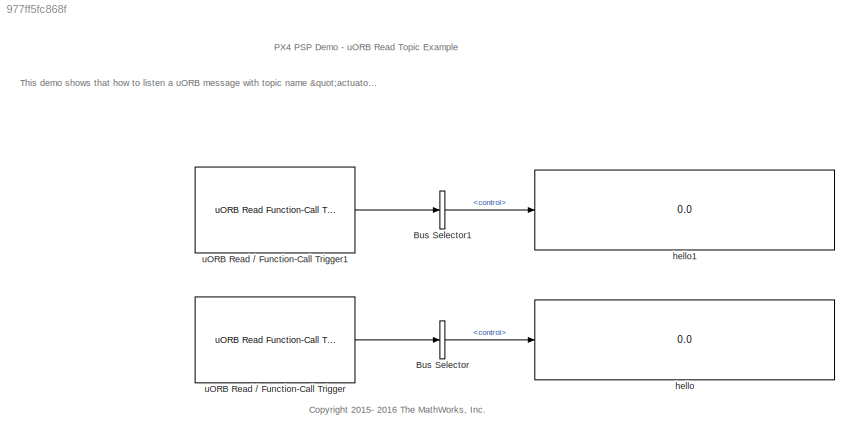
MODEL slx_977ff5fc868f
KIND model
CONFIG AbsTol = auto
CONFIG EnableMultiTasking = on
CONFIG FixedStep = 0.01
CONFIG MaxStep = auto
CONFIG MinStep = auto
CONFIG RelTol = 1e-3
CONFIG SampleTimeConstraint = Unconstrained
CONFIG Solver = FixedStepDiscrete
CONFIG SolverName = FixedStepDiscrete
CONFIG StartTime = 0.0
CONFIG StopTime = inf
BLOCK [BusSelector] Bus Selector
  OutputAsBus = off
  OutputSignals = control
  Ports = [1, 1]
BLOCK [BusSelector] Bus Selector1
  OutputAsBus = off
  OutputSignals = control
  Ports = [1, 1]
BLOCK [Display] hello
  Decimation = 1
  Ports = [1]
BLOCK [Display] hello1
  Decimation = 1
  Ports = [1]
BLOCK [Reference] uORB Read // Function-Call Trigger  REF=pixhawk_slib_uORB_RW/uORB Read Function-Call Trigger
  Ports = [0, 1]
  SourceBlock = pixhawk_slib_uORB_RW/uORB Read Function-Call Trigger
  SourceProductName = Pixhawk Target Blocks
BLOCK [Reference] uORB Read // Function-Call Trigger1  REF=pixhawk_slib_uORB_RW/uORB Read Function-Call Trigger
  Ports = [0, 1]
  SourceBlock = pixhawk_slib_uORB_RW/uORB Read Function-Call Trigger
  SourceProductName = Pixhawk Target Blocks
ANNOTATION (root): PX4 PSP Demo - uORB Read Topic Example
ANNOTATION (root): This demo shows that how to listen a uORB message with topic name "actuator_controls_0" different from the msg file name " actuator_controls ".
ANNOTATION (root): <copyright redacted>
LINE Bus Selector1:1 -> hello1:1
LINE Bus Selector:1 -> hello:1
LINE uORB Read // Function-Call Trigger1:1 -> Bus Selector1:1
LINE uORB Read // Function-Call Trigger:1 -> Bus Selector:1
